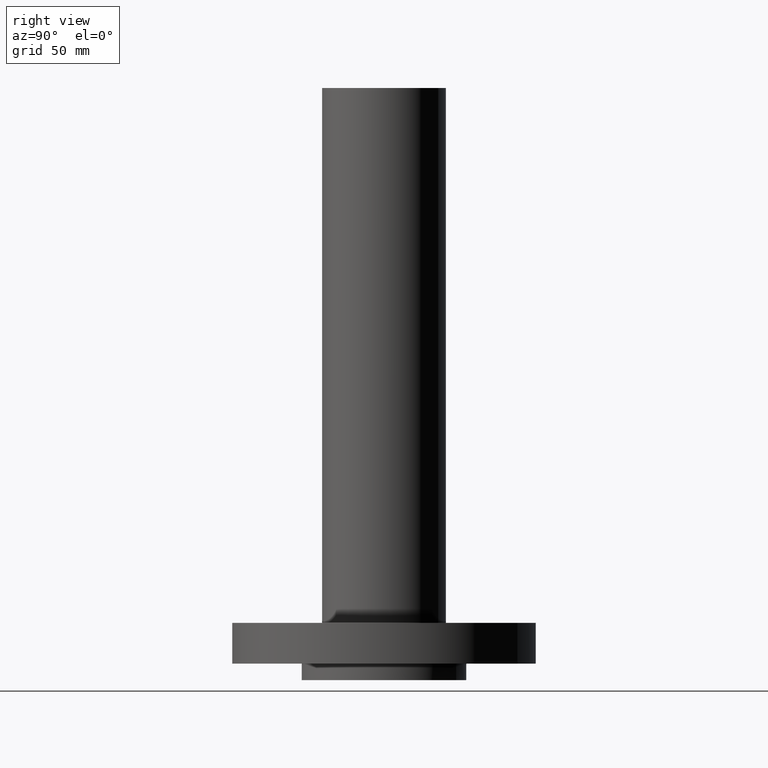
[diagram: clean part render]
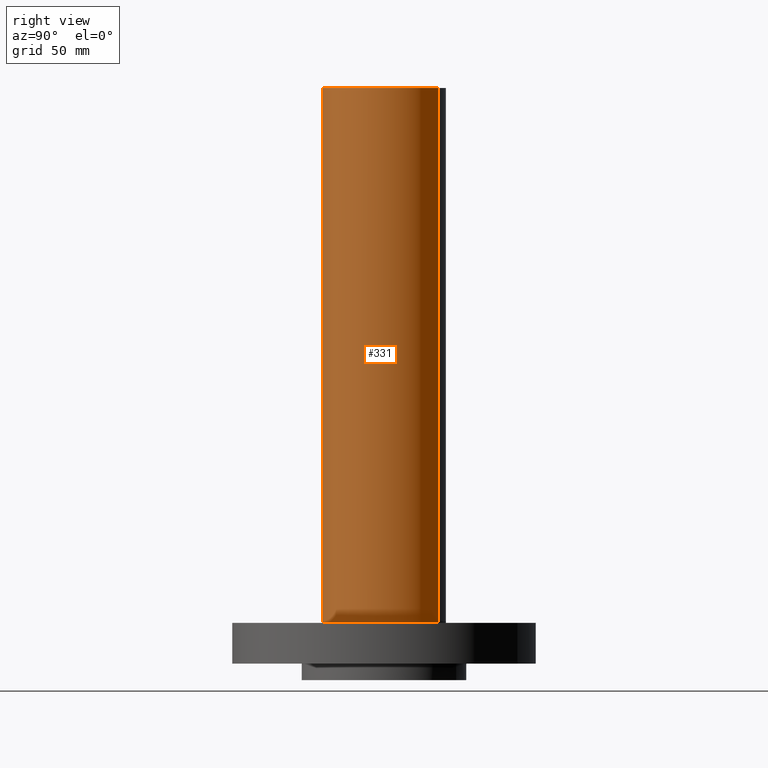
[diagram: same view with one face highlighted and labeled with its STEP entity id]
A machine part, right view. The second image highlights one B-rep face of the part: STEP entity #331.
In plain terms, the highlighted cylindrical surface (partial cylindrical patch) has radius 23.876 mm, axis along (0, 0, -1).
Its self-contained STEP definition (entity closure, byte-faithful):
#295=AXIS2_PLACEMENT_3D('Cylinder Axis2P3D',#292,#293,#294) ;
#299=AXIS2_PLACEMENT_3D('Circle Axis2P3D',#297,#298,$) ;
#315=AXIS2_PLACEMENT_3D('Circle Axis2P3D',#313,#314,$) ;
#292=CARTESIAN_POINT('Axis2P3D Location',(0.,0.,4.25000000002)) ;
#297=CARTESIAN_POINT('Axis2P3D Location',(0.,0.,0.620000000002)) ;
#301=CARTESIAN_POINT('Vertex',(0.45066000629,0.82492760818,0.620000000002)) ;
#303=CARTESIAN_POINT('Vertex',(-0.45066000629,-0.82492760818,0.620000000002)) ;
#306=CARTESIAN_POINT('Line Origine',(0.45066000629,0.82492760818,4.68500000002)) ;
#310=CARTESIAN_POINT('Vertex',(0.45066000629,0.82492760818,8.75000000004)) ;
#313=CARTESIAN_POINT('Axis2P3D Location',(0.,0.,8.75000000004)) ;
#317=CARTESIAN_POINT('Vertex',(-0.45066000629,-0.82492760818,8.75000000004)) ;
#320=CARTESIAN_POINT('Line Origine',(-0.45066000629,-0.82492760818,4.68500000002)) ;
#293=DIRECTION('Axis2P3D Direction',(0.,0.,-0.0393700787402)) ;
#294=DIRECTION('Axis2P3D XDirection',(-0.0188750212049,-0.0345504945626,0.)) ;
#298=DIRECTION('Axis2P3D Direction',(0.,0.,-0.0393700787402)) ;
#307=DIRECTION('Vector Direction',(0.,0.,-0.0393700787402)) ;
#314=DIRECTION('Axis2P3D Direction',(0.,0.,-0.0393700787402)) ;
#321=DIRECTION('Vector Direction',(0.,0.,-0.0393700787402)) ;
#308=VECTOR('Line Direction',#307,0.0393700787402) ;
#322=VECTOR('Line Direction',#321,0.0393700787402) ;
#326=ORIENTED_EDGE('',*,*,#305,.F.) ;
#327=ORIENTED_EDGE('',*,*,#312,.T.) ;
#328=ORIENTED_EDGE('',*,*,#319,.T.) ;
#329=ORIENTED_EDGE('',*,*,#324,.F.) ;
#331=ADVANCED_FACE('PartBody',(#330),#296,.T.) ;
#300=CIRCLE('generated circle',#299,0.940000000004) ;
#316=CIRCLE('generated circle',#315,0.940000000004) ;
#296=CYLINDRICAL_SURFACE('generated cylinder',#295,0.940000000004) ;
#305=EDGE_CURVE('',#302,#304,#300,.T.) ;
#312=EDGE_CURVE('',#302,#311,#309,.F.) ;
#319=EDGE_CURVE('',#311,#318,#316,.T.) ;
#324=EDGE_CURVE('',#304,#318,#323,.F.) ;
#325=EDGE_LOOP('',(#326,#327,#328,#329)) ;
#330=FACE_OUTER_BOUND('',#325,.T.) ;
#309=LINE('Line',#306,#308) ;
#323=LINE('Line',#320,#322) ;
#302=VERTEX_POINT('',#301) ;
#304=VERTEX_POINT('',#303) ;
#311=VERTEX_POINT('',#310) ;
#318=VERTEX_POINT('',#317) ;